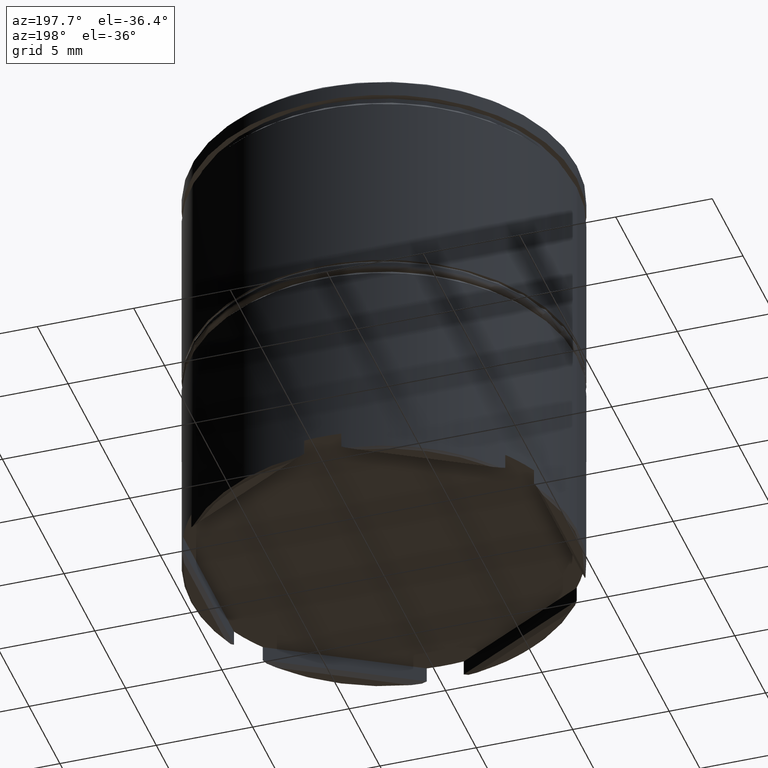
[diagram: clean part render]
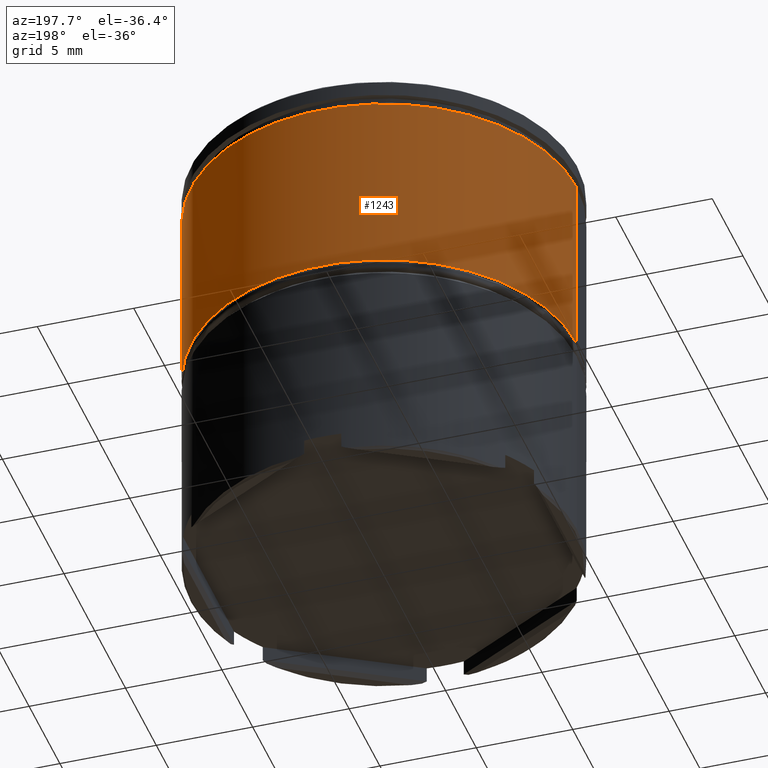
[diagram: same view with one face highlighted and labeled with its STEP entity id]
A machine part, auxiliary view. The second image highlights one B-rep face of the part: STEP entity #1243.
In plain terms, the highlighted cylindrical surface (partial cylindrical patch) has radius 10 mm, axis along (-0, -0, 1).
Its self-contained STEP definition (entity closure, byte-faithful):
#41 = CIRCLE ( 'NONE', #892, 10.00000000000000000 ) ;
#53 = CARTESIAN_POINT ( 'NONE',  ( 0.000000000000000000, 0.000000000000000000, -11.00000000000000000 ) ) ;
#88 = VECTOR ( 'NONE', #1370, 1000.000000000000000 ) ;
#111 = AXIS2_PLACEMENT_3D ( 'NONE', #53, #831, #178 ) ;
#127 = DIRECTION ( 'NONE',  ( 0.000000000000000000, 0.000000000000000000, -1.000000000000000000 ) ) ;
#170 = ORIENTED_EDGE ( 'NONE', *, *, #935, .T. ) ;
#178 = DIRECTION ( 'NONE',  ( 1.000000000000000000, 0.000000000000000000, 0.000000000000000000 ) ) ;
#226 = ORIENTED_EDGE ( 'NONE', *, *, #1501, .F. ) ;
#290 = ORIENTED_EDGE ( 'NONE', *, *, #838, .T. ) ;
#296 = CIRCLE ( 'NONE', #111, 10.00000000000000000 ) ;
#357 = CARTESIAN_POINT ( 'NONE',  ( 0.000000000000000000, 0.000000000000000000, 0.000000000000000000 ) ) ;
#429 = AXIS2_PLACEMENT_3D ( 'NONE', #357, #743, #1275 ) ;
#434 = CARTESIAN_POINT ( 'NONE',  ( 10.00000000000000000, 0.000000000000000000, -1.425000000000008704 ) ) ;
#482 = LINE ( 'NONE', #1148, #88 ) ;
#511 = VERTEX_POINT ( 'NONE', #434 ) ;
#743 = DIRECTION ( 'NONE',  ( -0.000000000000000000, -0.000000000000000000, 1.000000000000000000 ) ) ;
#768 = CARTESIAN_POINT ( 'NONE',  ( 0.000000000000000000, 0.000000000000000000, -1.425000000000008704 ) ) ;
#831 = DIRECTION ( 'NONE',  ( -0.000000000000000000, -0.000000000000000000, 1.000000000000000000 ) ) ;
#838 = EDGE_CURVE ( 'NONE', #1166, #877, #296, .T. ) ;
#877 = VERTEX_POINT ( 'NONE', #1192 ) ;
#882 = VERTEX_POINT ( 'NONE', #1180 ) ;
#892 = AXIS2_PLACEMENT_3D ( 'NONE', #768, #127, #1429 ) ;
#909 = EDGE_LOOP ( 'NONE', ( #290, #1626, #170, #226 ) ) ;
#935 = EDGE_CURVE ( 'NONE', #882, #511, #41, .T. ) ;
#1076 = CARTESIAN_POINT ( 'NONE',  ( 10.00000000000000000, 0.000000000000000000, 0.000000000000000000 ) ) ;
#1134 = VECTOR ( 'NONE', #1204, 1000.000000000000000 ) ;
#1148 = CARTESIAN_POINT ( 'NONE',  ( -10.00000000000000000, 1.224646799147353256E-15, 0.000000000000000000 ) ) ;
#1166 = VERTEX_POINT ( 'NONE', #1225 ) ;
#1180 = CARTESIAN_POINT ( 'NONE',  ( -10.00000000000000000, 1.224646799147353256E-15, -1.425000000000008704 ) ) ;
#1192 = CARTESIAN_POINT ( 'NONE',  ( -10.00000000000000000, 1.224646799147353256E-15, -11.00000000000000000 ) ) ;
#1204 = DIRECTION ( 'NONE',  ( -0.000000000000000000, -0.000000000000000000, 1.000000000000000000 ) ) ;
#1216 = EDGE_CURVE ( 'NONE', #877, #882, #482, .T. ) ;
#1225 = CARTESIAN_POINT ( 'NONE',  ( 10.00000000000000000, 0.000000000000000000, -11.00000000000000000 ) ) ;
#1243 = ADVANCED_FACE ( 'NONE', ( #1396 ), #1483, .T. ) ;
#1275 = DIRECTION ( 'NONE',  ( 1.000000000000000000, 0.000000000000000000, 0.000000000000000000 ) ) ;
#1370 = DIRECTION ( 'NONE',  ( -0.000000000000000000, -0.000000000000000000, 1.000000000000000000 ) ) ;
#1396 = FACE_OUTER_BOUND ( 'NONE', #909, .T. ) ;
#1429 = DIRECTION ( 'NONE',  ( 1.000000000000000000, 0.000000000000000000, 0.000000000000000000 ) ) ;
#1467 = LINE ( 'NONE', #1076, #1134 ) ;
#1483 = CYLINDRICAL_SURFACE ( 'NONE', #429, 10.00000000000000000 ) ;
#1501 = EDGE_CURVE ( 'NONE', #1166, #511, #1467, .T. ) ;
#1626 = ORIENTED_EDGE ( 'NONE', *, *, #1216, .T. ) ;